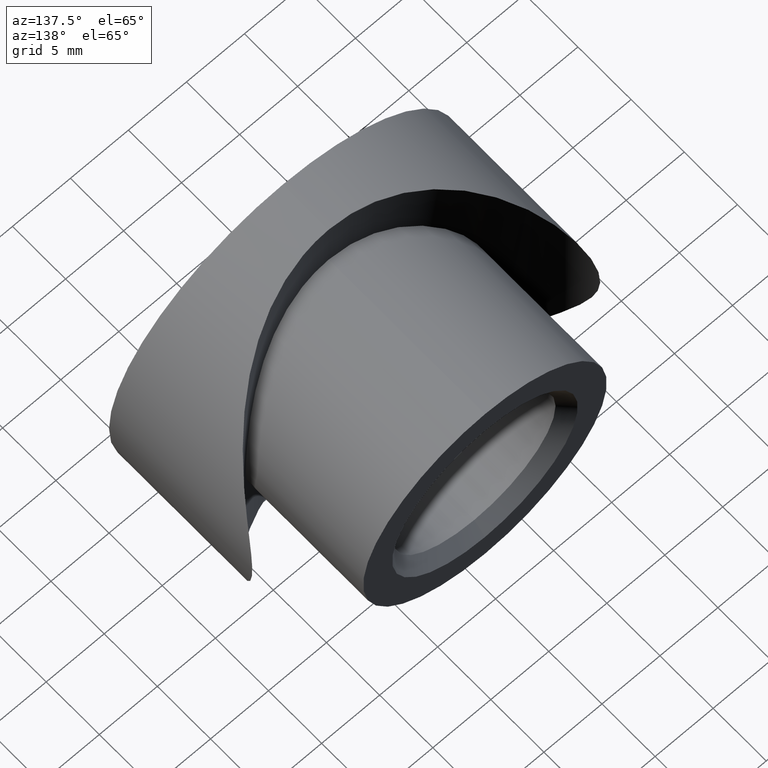
[diagram: clean part render]
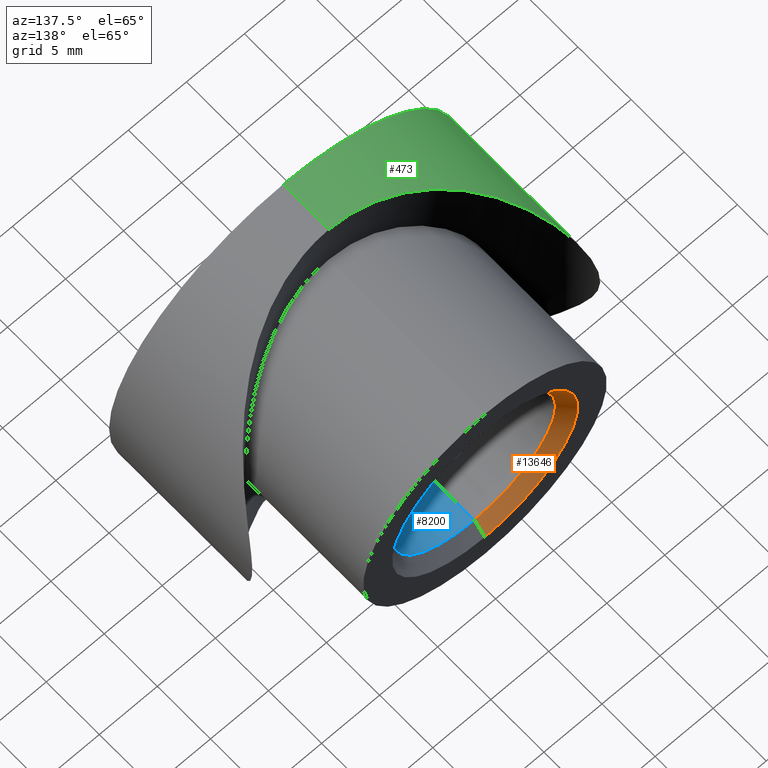
[diagram: same view with three faces highlighted in distinct colors, each labeled with its STEP entity id]
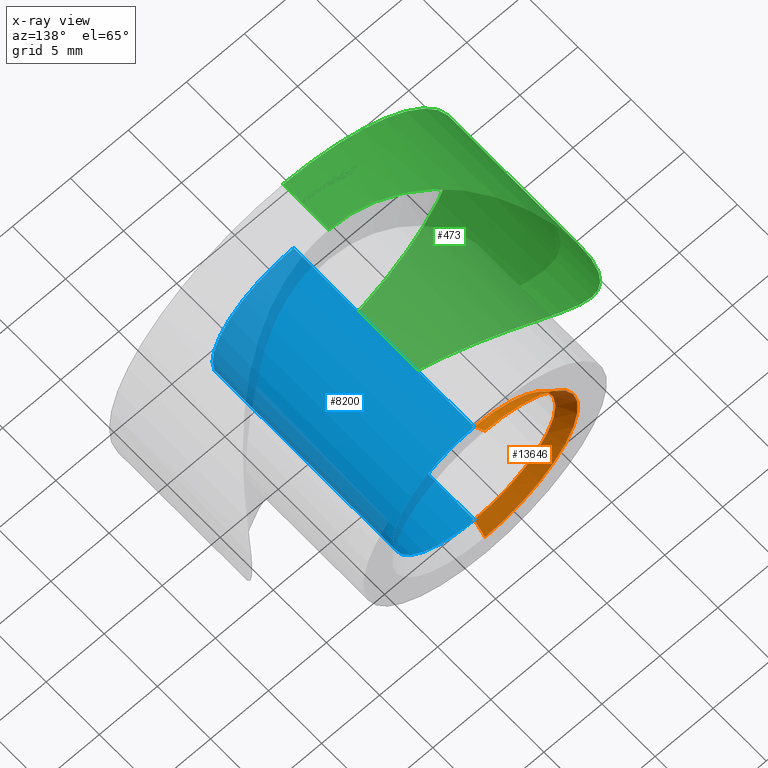
[diagram: x-ray of the same camera — body ghosted, the three highlighted faces saturated]
A machine part, auxiliary view with three faces highlighted in distinct colors.
The next image is the same camera in x-ray (body ghosted, the three faces saturated) — at least one of them is partly hidden behind the body in this view.
Their STEP definitions:

[orange] entity #13646 — the highlighted conical surface has half-angle 45 deg.
#631 = VECTOR ( 'NONE', #1084, 1000.000000000000000 ) ;
#923 = ORIENTED_EDGE ( 'NONE', *, *, #2978, .F. ) ;
#994 = LINE ( 'NONE', #4350, #631 ) ;
#1084 = DIRECTION ( 'NONE',  ( 8.659560562354944000E-017, 0.7071067811865465700, -0.7071067811865484600 ) ) ;
#1114 = AXIS2_PLACEMENT_3D ( 'NONE', #3744, #4850, #5955 ) ;
#1212 = EDGE_CURVE ( 'NONE', #3673, #14171, #4046, .T. ) ;
#1420 = CIRCLE ( 'NONE', #1114, 6.999999999999992900 ) ;
#1519 = DIRECTION ( 'NONE',  ( 0.0000000000000000000, 1.000000000000000000, 0.0000000000000000000 ) ) ;
#2175 = VERTEX_POINT ( 'NONE', #4762 ) ;
#2585 = CONICAL_SURFACE ( 'NONE', #10669, 6.999999999999992900, 0.7853981633974496100 ) ;
#2874 = DIRECTION ( 'NONE',  ( 0.0000000000000000000, 0.7071067811865465700, 0.7071067811865484600 ) ) ;
#2978 = EDGE_CURVE ( 'NONE', #2175, #3673, #12772, .T. ) ;
#3660 = ORIENTED_EDGE ( 'NONE', *, *, #4433, .F. ) ;
#3673 = VERTEX_POINT ( 'NONE', #11272 ) ;
#3744 = CARTESIAN_POINT ( 'NONE',  ( 0.0000000000000000000, 17.99999999999999600, 0.0000000000000000000 ) ) ;
#4044 = VERTEX_POINT ( 'NONE', #4054 ) ;
#4046 = CIRCLE ( 'NONE', #12381, 8.000000000000000000 ) ;
#4054 = CARTESIAN_POINT ( 'NONE',  ( 8.572527594031464300E-016, 17.99999999999999600, -6.999999999999992900 ) ) ;
#4350 = CARTESIAN_POINT ( 'NONE',  ( 8.572527594031464300E-016, 17.99999999999999600, -6.999999999999992900 ) ) ;
#4363 = VECTOR ( 'NONE', #2874, 1000.000000000000000 ) ;
#4433 = EDGE_CURVE ( 'NONE', #4044, #2175, #1420, .T. ) ;
#4762 = CARTESIAN_POINT ( 'NONE',  ( 0.0000000000000000000, 17.99999999999999600, 6.999999999999992900 ) ) ;
#4850 = DIRECTION ( 'NONE',  ( 0.0000000000000000000, 1.000000000000000000, 0.0000000000000000000 ) ) ;
#5287 = DIRECTION ( 'NONE',  ( 0.0000000000000000000, 0.0000000000000000000, -1.000000000000000000 ) ) ;
#5955 = DIRECTION ( 'NONE',  ( 0.0000000000000000000, 0.0000000000000000000, -1.000000000000000000 ) ) ;
#6038 = CARTESIAN_POINT ( 'NONE',  ( 0.0000000000000000000, 17.99999999999999600, 0.0000000000000000000 ) ) ;
#6241 = ORIENTED_EDGE ( 'NONE', *, *, #11604, .T. ) ;
#8226 = FACE_OUTER_BOUND ( 'NONE', #11762, .T. ) ;
#8278 = CARTESIAN_POINT ( 'NONE',  ( 0.0000000000000000000, 17.99999999999999600, 6.999999999999992900 ) ) ;
#10669 = AXIS2_PLACEMENT_3D ( 'NONE', #6038, #1519, #13679 ) ;
#11013 = ORIENTED_EDGE ( 'NONE', *, *, #1212, .F. ) ;
#11272 = CARTESIAN_POINT ( 'NONE',  ( 0.0000000000000000000, 19.00000000000000000, 8.000000000000000000 ) ) ;
#11604 = EDGE_CURVE ( 'NONE', #4044, #14171, #994, .T. ) ;
#11762 = EDGE_LOOP ( 'NONE', ( #3660, #6241, #11013, #923 ) ) ;
#12381 = AXIS2_PLACEMENT_3D ( 'NONE', #14169, #12962, #5287 ) ;
#12772 = LINE ( 'NONE', #8278, #4363 ) ;
#12962 = DIRECTION ( 'NONE',  ( 0.0000000000000000000, -1.000000000000000000, 0.0000000000000000000 ) ) ;
#13644 = CARTESIAN_POINT ( 'NONE',  ( 9.797174393178825700E-016, 19.00000000000000000, -8.000000000000000000 ) ) ;
#13646 = ADVANCED_FACE ( 'NONE', ( #8226 ), #2585, .F. ) ;
#13679 = DIRECTION ( 'NONE',  ( 0.0000000000000000000, 0.0000000000000000000, 1.000000000000000000 ) ) ;
#14169 = CARTESIAN_POINT ( 'NONE',  ( 0.0000000000000000000, 19.00000000000000000, 0.0000000000000000000 ) ) ;
#14171 = VERTEX_POINT ( 'NONE', #13644 ) ;

[blue] entity #8200 — the highlighted cylindrical surface (partial cylindrical patch) has radius 7 mm, axis along (-0, 1, -0).
#799 = AXIS2_PLACEMENT_3D ( 'NONE', #3807, #6011, #13694 ) ;
#852 = DIRECTION ( 'NONE',  ( 0.0000000000000000000, 0.0000000000000000000, 1.000000000000000000 ) ) ;
#875 = DIRECTION ( 'NONE',  ( 0.0000000000000000000, 1.000000000000000000, 0.0000000000000000000 ) ) ;
#892 = ORIENTED_EDGE ( 'NONE', *, *, #9269, .T. ) ;
#1378 = LINE ( 'NONE', #11071, #2400 ) ;
#1791 = CARTESIAN_POINT ( 'NONE',  ( 8.572527594031464300E-016, 0.9999999999999974500, -6.999999999999992900 ) ) ;
#2000 = CARTESIAN_POINT ( 'NONE',  ( 0.0000000000000000000, 0.9999999999999974500, 0.0000000000000000000 ) ) ;
#2175 = VERTEX_POINT ( 'NONE', #4762 ) ;
#2400 = VECTOR ( 'NONE', #14199, 1000.000000000000000 ) ;
#2540 = AXIS2_PLACEMENT_3D ( 'NONE', #6307, #875, #9659 ) ;
#2926 = CYLINDRICAL_SURFACE ( 'NONE', #799, 6.999999999999992900 ) ;
#3807 = CARTESIAN_POINT ( 'NONE',  ( 0.0000000000000000000, 19.00000000000000000, 0.0000000000000000000 ) ) ;
#3942 = CIRCLE ( 'NONE', #2540, 6.999999999999992900 ) ;
#4044 = VERTEX_POINT ( 'NONE', #4054 ) ;
#4054 = CARTESIAN_POINT ( 'NONE',  ( 8.572527594031464300E-016, 17.99999999999999600, -6.999999999999992900 ) ) ;
#4079 = DIRECTION ( 'NONE',  ( -0.0000000000000000000, -1.000000000000000000, -0.0000000000000000000 ) ) ;
#4531 = ORIENTED_EDGE ( 'NONE', *, *, #14216, .F. ) ;
#4762 = CARTESIAN_POINT ( 'NONE',  ( 0.0000000000000000000, 17.99999999999999600, 6.999999999999992900 ) ) ;
#4965 = VERTEX_POINT ( 'NONE', #11639 ) ;
#5333 = ORIENTED_EDGE ( 'NONE', *, *, #6180, .T. ) ;
#5855 = VECTOR ( 'NONE', #11339, 1000.000000000000000 ) ;
#5960 = CARTESIAN_POINT ( 'NONE',  ( 8.572527594031464300E-016, 19.00000000000000000, -6.999999999999992900 ) ) ;
#6011 = DIRECTION ( 'NONE',  ( -0.0000000000000000000, 1.000000000000000000, -0.0000000000000000000 ) ) ;
#6180 = EDGE_CURVE ( 'NONE', #4965, #2175, #1378, .T. ) ;
#6307 = CARTESIAN_POINT ( 'NONE',  ( 0.0000000000000000000, 17.99999999999999600, 0.0000000000000000000 ) ) ;
#6697 = EDGE_CURVE ( 'NONE', #10634, #4965, #8786, .T. ) ;
#6880 = LINE ( 'NONE', #5960, #5855 ) ;
#7264 = ORIENTED_EDGE ( 'NONE', *, *, #6697, .T. ) ;
#8200 = ADVANCED_FACE ( 'NONE', ( #9956 ), #2926, .F. ) ;
#8786 = CIRCLE ( 'NONE', #13531, 6.999999999999992900 ) ;
#9269 = EDGE_CURVE ( 'NONE', #2175, #4044, #3942, .T. ) ;
#9659 = DIRECTION ( 'NONE',  ( 0.0000000000000000000, 0.0000000000000000000, -1.000000000000000000 ) ) ;
#9956 = FACE_OUTER_BOUND ( 'NONE', #13842, .T. ) ;
#10634 = VERTEX_POINT ( 'NONE', #1791 ) ;
#11071 = CARTESIAN_POINT ( 'NONE',  ( 0.0000000000000000000, 19.00000000000000000, 6.999999999999992900 ) ) ;
#11339 = DIRECTION ( 'NONE',  ( -0.0000000000000000000, 1.000000000000000000, -0.0000000000000000000 ) ) ;
#11639 = CARTESIAN_POINT ( 'NONE',  ( 0.0000000000000000000, 0.9999999999999974500, 6.999999999999992900 ) ) ;
#13531 = AXIS2_PLACEMENT_3D ( 'NONE', #2000, #4079, #852 ) ;
#13694 = DIRECTION ( 'NONE',  ( 0.0000000000000000000, 0.0000000000000000000, 1.000000000000000000 ) ) ;
#13842 = EDGE_LOOP ( 'NONE', ( #4531, #7264, #5333, #892 ) ) ;
#14199 = DIRECTION ( 'NONE',  ( -0.0000000000000000000, 1.000000000000000000, -0.0000000000000000000 ) ) ;
#14216 = EDGE_CURVE ( 'NONE', #10634, #4044, #6880, .T. ) ;

[green] entity #473 — the highlighted cylindrical surface (partial cylindrical patch) has radius 15 mm, axis along (-0, -1, -0).
#8 = LINE ( 'NONE', #10782, #2079 ) ;
#473 = ADVANCED_FACE ( 'NONE', ( #10294 ), #2385, .T. ) ;
#539 = EDGE_CURVE ( 'NONE', #4692, #13563, #5285, .T. ) ;
#575 = CARTESIAN_POINT ( 'NONE',  ( -10.15098324664977800, 7.675207715613304900, 11.08156188437740900 ) ) ;
#621 = CARTESIAN_POINT ( 'NONE',  ( -15.00014806619125600, 13.47419006869983700, -0.2569402839346641700 ) ) ;
#662 = CARTESIAN_POINT ( 'NONE',  ( -7.002433202427369000, 5.816547717601692600, 13.27431832855278800 ) ) ;
#714 = CARTESIAN_POINT ( 'NONE',  ( -7.028626094143886500, 5.804127622911130900, -13.28960197094400000 ) ) ;
#739 = AXIS2_PLACEMENT_3D ( 'NONE', #7325, #6247, #4041 ) ;
#777 = CARTESIAN_POINT ( 'NONE',  ( -2.666443716626810900, 4.504179619731610600, -14.77035801763575100 ) ) ;
#1031 = EDGE_LOOP ( 'NONE', ( #3530, #3653, #8241, #11816 ) ) ;
#1671 = CARTESIAN_POINT ( 'NONE',  ( -2.143957306134153500, 4.428349662440453500, -14.85569876551880600 ) ) ;
#1716 = CARTESIAN_POINT ( 'NONE',  ( -13.00775074666562500, 10.41298967186178000, 7.525084228617783000 ) ) ;
#1772 = CARTESIAN_POINT ( 'NONE',  ( -14.77906531523416300, 13.05392880384393800, -2.613598029027482300 ) ) ;
#1822 = CARTESIAN_POINT ( 'NONE',  ( -5.648328352116427800, 5.267222920000024900, -13.90504092608243500 ) ) ;
#1868 = CARTESIAN_POINT ( 'NONE',  ( -0.5322814907385078300, 4.306282967144005300, 14.99294320153237200 ) ) ;
#2079 = VECTOR ( 'NONE', #11865, 1000.000000000000000 ) ;
#2385 = CYLINDRICAL_SURFACE ( 'NONE', #2526, 15.00000000000000000 ) ;
#2526 = AXIS2_PLACEMENT_3D ( 'NONE', #9702, #6343, #7510 ) ;
#2781 = CARTESIAN_POINT ( 'NONE',  ( -1.335934497031235900, 4.350924231119592800, 14.94277808804010000 ) ) ;
#2831 = CARTESIAN_POINT ( 'NONE',  ( -14.99325789573668100, 13.46067896105227000, -0.5229043018592171000 ) ) ;
#2875 = CARTESIAN_POINT ( 'NONE',  ( -5.162845310492208700, 5.102250667659851600, 14.09303416019651300 ) ) ;
#2928 = CARTESIAN_POINT ( 'NONE',  ( 1.836970246836746200E-015, 4.300000000000000700, 15.00000000000000000 ) ) ;
#2983 = CARTESIAN_POINT ( 'NONE',  ( -12.75905726850694100, 10.13769984885849200, -7.900339878895066700 ) ) ;
#3530 = ORIENTED_EDGE ( 'NONE', *, *, #10280, .F. ) ;
#3653 = ORIENTED_EDGE ( 'NONE', *, *, #539, .T. ) ;
#3891 = CARTESIAN_POINT ( 'NONE',  ( -14.56759476893175500, 12.67930064239109100, 3.610692206479272600 ) ) ;
#3933 = CARTESIAN_POINT ( 'NONE',  ( -1.076218406673221200, 4.325853754699199500, -14.97097500777757300 ) ) ;
#3990 = CARTESIAN_POINT ( 'NONE',  ( -13.98303764632314700, 11.74270247216324800, 5.448795554080427400 ) ) ;
#4041 = DIRECTION ( 'NONE',  ( 0.0000000000000000000, 0.0000000000000000000, 1.000000000000000000 ) ) ;
#4045 = CARTESIAN_POINT ( 'NONE',  ( -11.43397731633539000, 8.745240753009067400, -9.752422061477974000 ) ) ;
#4082 = DIRECTION ( 'NONE',  ( -0.0000000000000000000, -1.000000000000000000, -0.0000000000000000000 ) ) ;
#4093 = CARTESIAN_POINT ( 'NONE',  ( -1.066943131721263900, 4.331683811332991900, 14.96440115017742800 ) ) ;
#4692 = VERTEX_POINT ( 'NONE', #6574 ) ;
#4998 = CARTESIAN_POINT ( 'NONE',  ( -1.209609030241673400E-016, 4.300000000000002500, -15.00000000000000000 ) ) ;
#5048 = CARTESIAN_POINT ( 'NONE',  ( -0.2657497645407889700, 4.300000000000002500, 15.00000000000000400 ) ) ;
#5097 = CARTESIAN_POINT ( 'NONE',  ( -14.96517098375472300, 13.40615742702241200, -1.055873412847778000 ) ) ;
#5138 = CARTESIAN_POINT ( 'NONE',  ( -7.874109621070600100, 6.225036902050723200, -12.80306368135971000 ) ) ;
#5196 = CARTESIAN_POINT ( 'NONE',  ( -14.43998511081309600, 12.46175235854891700, 4.088953916542727100 ) ) ;
#5285 = B_SPLINE_CURVE_WITH_KNOTS ( 'NONE', 3,
 ( #2928, #5048, #1868, #4093, #2781, #12825, #8430, #10622, #11766, #2875, #10667, #6143, #662, #13833, #9445, #8378, #575, #13929, #12717, #7236, #13777, #1716, #9508, #3990, #11659, #5196, #3891, #9556, #9397, #11569, #8328, #621, #2831, #5097, #10577, #12773, #1772, #12869, #6101, #8222, #7181, #10462, #7288, #6195, #2983, #6301, #4045, #11717, #13876, #7138, #6251, #5138, #714, #1822, #7327, #8280, #10520, #777, #1671, #3933, #9357, #4998 ),
 .UNSPECIFIED., .F., .F.,
 ( 4, 2, 2, 2, 2, 2, 2, 2, 2, 2, 2, 2, 2, 2, 2, 2, 2, 2, 2, 2, 2, 2, 2, 2, 2, 2, 2, 2, 2, 2, 4 ),
 ( 0.05101021095424455200, 0.05180678021875403200, 0.05260334948326352000, 0.05419648801228248900, 0.05578962654130145700, 0.05738276507032041800, 0.05897590359933938700, 0.06056904212835835500, 0.06375531918639629200, 0.06534845771541525300, 0.06694159624443421500, 0.07012787330247215200, 0.07172101183149111300, 0.07331415036051007500, 0.07490728888952903600, 0.07650042741854799800, 0.07729699668305747800, 0.07809356594756697300, 0.07968670447658592100, 0.08127984300560489600, 0.08287298153462384400, 0.08446612006364281900, 0.08605925859266178000, 0.08924553565069970300, 0.09083867417971866500, 0.09243181270873762600, 0.09561808976677554900, 0.09721122829579451100, 0.09880436682481347200, 0.1003975053538324300, 0.1019906438828514000 ),
 .UNSPECIFIED. ) ;
#6101 = CARTESIAN_POINT ( 'NONE',  ( -14.44399217823189700, 12.46845515835569700, -4.074659422287441000 ) ) ;
#6132 = CARTESIAN_POINT ( 'NONE',  ( 1.836970198721029600E-015, 19.00000000000000000, 15.00000000000000000 ) ) ;
#6143 = CARTESIAN_POINT ( 'NONE',  ( -6.559926235587895800, 5.621551197036414000, 13.49889665633021700 ) ) ;
#6195 = CARTESIAN_POINT ( 'NONE',  ( -12.99422156758266500, 10.41712780554143500, -7.507295084772245300 ) ) ;
#6207 = CIRCLE ( 'NONE', #739, 15.00000000000000000 ) ;
#6247 = DIRECTION ( 'NONE',  ( 0.0000000000000000000, 1.000000000000000000, 0.0000000000000000000 ) ) ;
#6251 = CARTESIAN_POINT ( 'NONE',  ( -9.049063134012019600, 6.928700381237637100, -11.97265496391931300 ) ) ;
#6301 = CARTESIAN_POINT ( 'NONE',  ( -12.00201883562612800, 9.299209652147251100, -9.043627270165085700 ) ) ;
#6343 = DIRECTION ( 'NONE',  ( -0.0000000000000000000, -1.000000000000000000, -0.0000000000000000000 ) ) ;
#6574 = CARTESIAN_POINT ( 'NONE',  ( 1.836970246836746200E-015, 4.300000000000000700, 15.00000000000000000 ) ) ;
#6907 = CARTESIAN_POINT ( 'NONE',  ( -1.209609030241673400E-016, 4.300000000000002500, -15.00000000000000000 ) ) ;
#7102 = EDGE_CURVE ( 'NONE', #13563, #12914, #8, .T. ) ;
#7138 = CARTESIAN_POINT ( 'NONE',  ( -9.426397277330545800, 7.176551912363677000, -11.67750838880630000 ) ) ;
#7181 = CARTESIAN_POINT ( 'NONE',  ( -13.98914351858305100, 11.75178312325456400, -5.433168437229279700 ) ) ;
#7236 = CARTESIAN_POINT ( 'NONE',  ( -11.98306091132917800, 9.297277929764920400, 9.034128449081267200 ) ) ;
#7288 = CARTESIAN_POINT ( 'NONE',  ( -13.42755586063776200, 10.96446696046471900, -6.701493657889155700 ) ) ;
#7325 = CARTESIAN_POINT ( 'NONE',  ( 0.0000000000000000000, 0.0000000000000000000, 0.0000000000000000000 ) ) ;
#7327 = CARTESIAN_POINT ( 'NONE',  ( -5.167033004524740600, 5.103700707654264000, -14.09138109826325200 ) ) ;
#7329 = EDGE_CURVE ( 'NONE', #12914, #12408, #6207, .T. ) ;
#7510 = DIRECTION ( 'NONE',  ( 0.0000000000000000000, 0.0000000000000000000, -1.000000000000000000 ) ) ;
#8222 = CARTESIAN_POINT ( 'NONE',  ( -14.15298966602539800, 12.00172068661634500, -4.992458609326505800 ) ) ;
#8241 = ORIENTED_EDGE ( 'NONE', *, *, #7102, .T. ) ;
#8280 = CARTESIAN_POINT ( 'NONE',  ( -4.188347804747557700, 4.820894276910030900, -14.41259844694235200 ) ) ;
#8328 = CARTESIAN_POINT ( 'NONE',  ( -14.99969663701134200, 13.47330792371734500, 0.5393904581189303800 ) ) ;
#8378 = CARTESIAN_POINT ( 'NONE',  ( -9.446709176307793500, 7.167193835095333500, 11.69116089175237100 ) ) ;
#8430 = CARTESIAN_POINT ( 'NONE',  ( -2.653514126291002500, 4.502106402088466900, 14.77269377907057900 ) ) ;
#9357 = CARTESIAN_POINT ( 'NONE',  ( -0.5401560524410131700, 4.300000000000002500, -15.00000000000000200 ) ) ;
#9397 = CARTESIAN_POINT ( 'NONE',  ( -14.85861374278175100, 13.20275139574639800, 2.121870652778446300 ) ) ;
#9445 = CARTESIAN_POINT ( 'NONE',  ( -8.269833434487631900, 6.461857653447498100, 12.52360747869698600 ) ) ;
#9508 = CARTESIAN_POINT ( 'NONE',  ( -13.43856042997013300, 10.96530815620931800, 6.727849047405060300 ) ) ;
#9556 = CARTESIAN_POINT ( 'NONE',  ( -14.77637379086408000, 13.04899126333831900, 2.628819726493829100 ) ) ;
#9702 = CARTESIAN_POINT ( 'NONE',  ( 0.0000000000000000000, 19.00000000000000000, 0.0000000000000000000 ) ) ;
#10280 = EDGE_CURVE ( 'NONE', #4692, #12408, #11988, .T. ) ;
#10294 = FACE_OUTER_BOUND ( 'NONE', #1031, .T. ) ;
#10462 = CARTESIAN_POINT ( 'NONE',  ( -13.62644274158377800, 11.23321246288922400, -6.287727241313606700 ) ) ;
#10520 = CARTESIAN_POINT ( 'NONE',  ( -3.688461600289147000, 4.700425256278217400, -14.54883669185504600 ) ) ;
#10577 = CARTESIAN_POINT ( 'NONE',  ( -14.94377499687288100, 13.36477907024834400, -1.323947997046356100 ) ) ;
#10622 = CARTESIAN_POINT ( 'NONE',  ( -3.676134840234532000, 4.697658795714709800, 14.55196383121640100 ) ) ;
#10667 = CARTESIAN_POINT ( 'NONE',  ( -5.641186031137967100, 5.264712007498587800, 13.90790650373848100 ) ) ;
#10782 = CARTESIAN_POINT ( 'NONE',  ( 0.0000000000000000000, 19.00000000000000000, -15.00000000000000000 ) ) ;
#10891 = CARTESIAN_POINT ( 'NONE',  ( 0.0000000000000000000, 0.0000000000000000000, -15.00000000000000000 ) ) ;
#11569 = CARTESIAN_POINT ( 'NONE',  ( -14.97129643907274700, 13.41711918697817300, 1.068185544609506100 ) ) ;
#11659 = CARTESIAN_POINT ( 'NONE',  ( -14.14741360571198400, 11.99306244705144100, 5.008333295721174100 ) ) ;
#11717 = CARTESIAN_POINT ( 'NONE',  ( -10.47633654916444900, 7.946147538683610500, -10.74512753961346700 ) ) ;
#11766 = CARTESIAN_POINT ( 'NONE',  ( -4.177865733418861400, 4.818108858824110100, 14.41575601396130900 ) ) ;
#11816 = ORIENTED_EDGE ( 'NONE', *, *, #7329, .T. ) ;
#11865 = DIRECTION ( 'NONE',  ( -0.0000000000000000000, -1.000000000000000000, -0.0000000000000000000 ) ) ;
#11988 = LINE ( 'NONE', #6132, #13712 ) ;
#12408 = VERTEX_POINT ( 'NONE', #12903 ) ;
#12717 = CARTESIAN_POINT ( 'NONE',  ( -11.41033188374414700, 8.744956848858823400, 9.747489519970590900 ) ) ;
#12773 = CARTESIAN_POINT ( 'NONE',  ( -14.86032254965156900, 13.20596965960336700, -2.108983533482814600 ) ) ;
#12825 = CARTESIAN_POINT ( 'NONE',  ( -2.132629552896333300, 4.426990047665310800, 14.85722864686382900 ) ) ;
#12869 = CARTESIAN_POINT ( 'NONE',  ( -14.57141675354347900, 12.68590204453318600, -3.595202364797560200 ) ) ;
#12903 = CARTESIAN_POINT ( 'NONE',  ( 1.836970198721029600E-015, 0.0000000000000000000, 15.00000000000000000 ) ) ;
#12914 = VERTEX_POINT ( 'NONE', #10891 ) ;
#13563 = VERTEX_POINT ( 'NONE', #6907 ) ;
#13712 = VECTOR ( 'NONE', #4082, 1000.000000000000000 ) ;
#13777 = CARTESIAN_POINT ( 'NONE',  ( -12.25374682356413000, 9.578102733238870000, 8.663302304420932700 ) ) ;
#13833 = CARTESIAN_POINT ( 'NONE',  ( -7.856434628655999400, 6.236071457302137400, 12.78741697012592300 ) ) ;
#13876 = CARTESIAN_POINT ( 'NONE',  ( -10.13939869812070100, 7.684978235127865700, -11.06407528179623500 ) ) ;
#13929 = CARTESIAN_POINT ( 'NONE',  ( -11.10805511327926400, 8.473008693083624400, 10.09068779955624100 ) ) ;